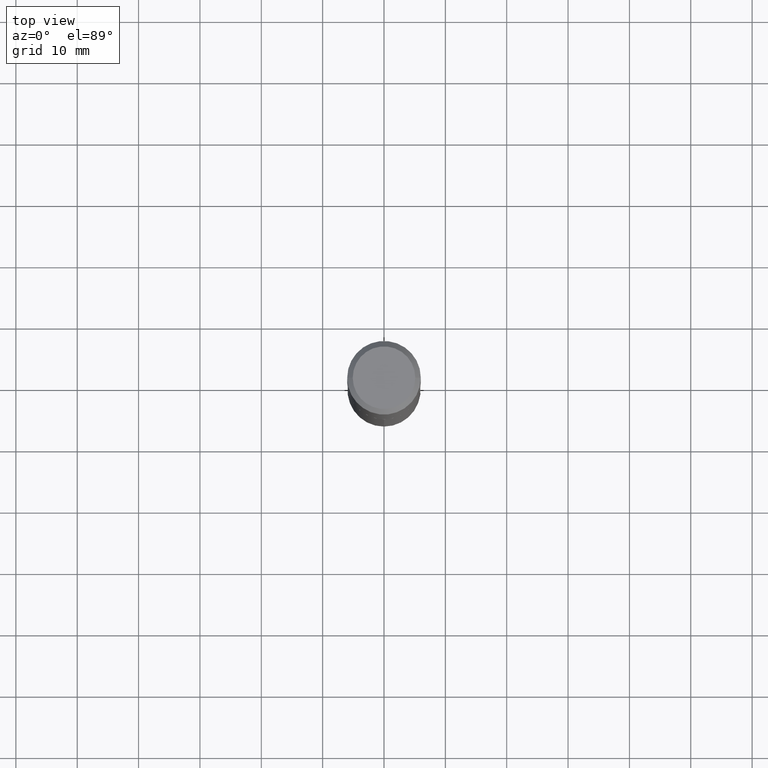
[diagram: clean part render]
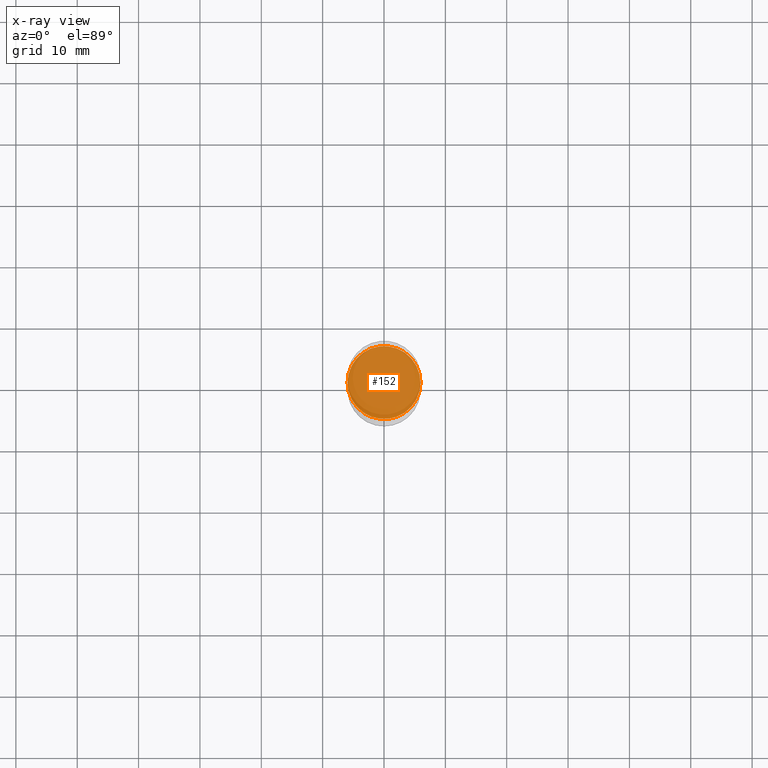
[diagram: x-ray — body ghosted, one internal face saturated and labeled with its STEP entity id]
A machine part, top view, then the same camera in x-ray: the body is ghosted and one INTERNAL B-rep face — a face not visible from any outside direction — is saturated and labeled: STEP entity #152.
In plain terms, the highlighted planar face has unit normal (-0, 0, 1).
Its self-contained STEP definition (entity closure, byte-faithful):
#4 = DIRECTION ( 'NONE',  ( -2.438088387897960049E-29, 3.491481338843145188E-15, 1.000000000000000000 ) ) ;
#41 = AXIS2_PLACEMENT_3D ( 'NONE', #284, #357, #435 ) ;
#66 = EDGE_CURVE ( 'NONE', #351, #166, #68, .T. ) ;
#68 = CIRCLE ( 'NONE', #199, 0.2338999999999999968 ) ;
#145 = CARTESIAN_POINT ( 'NONE',  ( 0.2338999999999999968, -8.094999484107828382E-15, -1.850700000000000234 ) ) ;
#152 = ADVANCED_FACE ( 'NONE', ( #230 ), #348, .F. ) ;
#166 = VERTEX_POINT ( 'NONE', #145 ) ;
#199 = AXIS2_PLACEMENT_3D ( 'NONE', #300, #449, #404 ) ;
#230 = FACE_OUTER_BOUND ( 'NONE', #246, .T. ) ;
#246 = EDGE_LOOP ( 'NONE', ( #445, #323 ) ) ;
#251 = CIRCLE ( 'NONE', #41, 0.2338999999999999968 ) ;
#284 = CARTESIAN_POINT ( 'NONE',  ( 4.525829119606833187E-29, -6.461684513797010478E-15, -1.850700000000000234 ) ) ;
#293 = EDGE_CURVE ( 'NONE', #166, #351, #251, .T. ) ;
#300 = CARTESIAN_POINT ( 'NONE',  ( 4.525829119606833187E-29, -6.461684513797010478E-15, -1.850700000000000234 ) ) ;
#323 = ORIENTED_EDGE ( 'NONE', *, *, #66, .F. ) ;
#348 = PLANE ( 'NONE',  #472 ) ;
#351 = VERTEX_POINT ( 'NONE', #428 ) ;
#357 = DIRECTION ( 'NONE',  ( -2.445468806185136597E-29, 3.491481338843145583E-15, 1.000000000000000000 ) ) ;
#404 = DIRECTION ( 'NONE',  ( 1.000000000000000000, -6.982962677686268288E-15, 0.000000000000000000 ) ) ;
#420 = CARTESIAN_POINT ( 'NONE',  ( 3.016437082436440077E-29, -8.623219820284590802E-15, -1.850700000000000012 ) ) ;
#423 = DIRECTION ( 'NONE',  ( 1.000000000000000000, -6.982962677686265922E-15, 4.876176775795935793E-29 ) ) ;
#428 = CARTESIAN_POINT ( 'NONE',  ( -0.2338999999999999968, -4.797075827680024965E-15, -1.850700000000000234 ) ) ;
#435 = DIRECTION ( 'NONE',  ( 1.000000000000000000, -6.982962677686268288E-15, 0.000000000000000000 ) ) ;
#445 = ORIENTED_EDGE ( 'NONE', *, *, #293, .F. ) ;
#449 = DIRECTION ( 'NONE',  ( -2.445468806185136597E-29, 3.491481338843145583E-15, 1.000000000000000000 ) ) ;
#472 = AXIS2_PLACEMENT_3D ( 'NONE', #420, #4, #423 ) ;